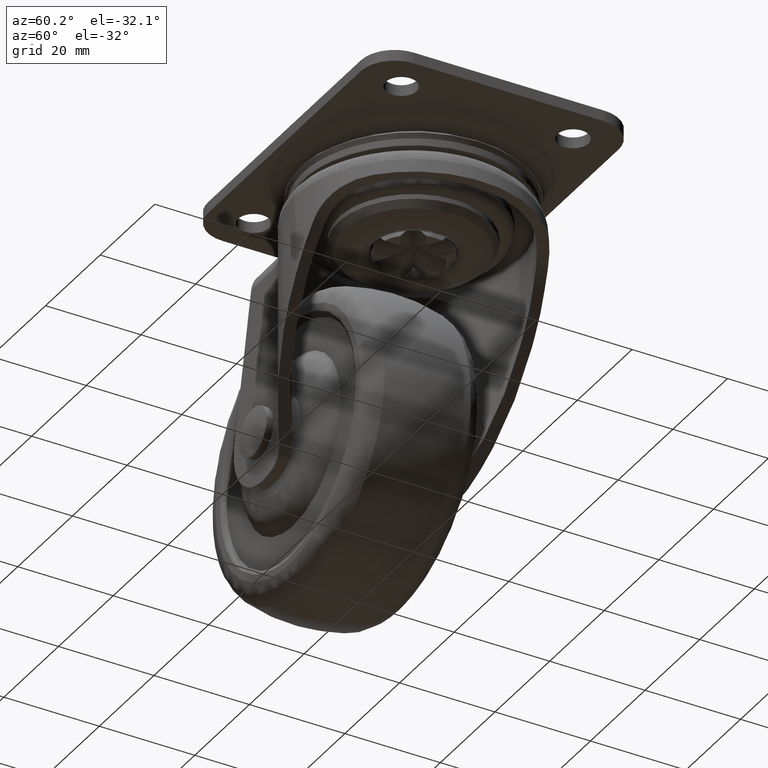
[diagram: clean part render]
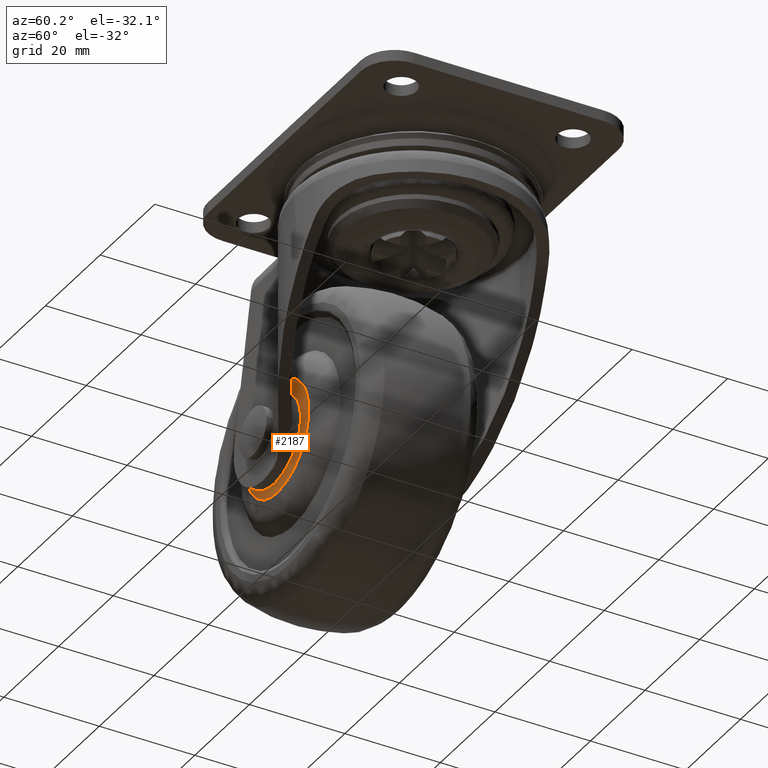
[diagram: same view with one face highlighted and labeled with its STEP entity id]
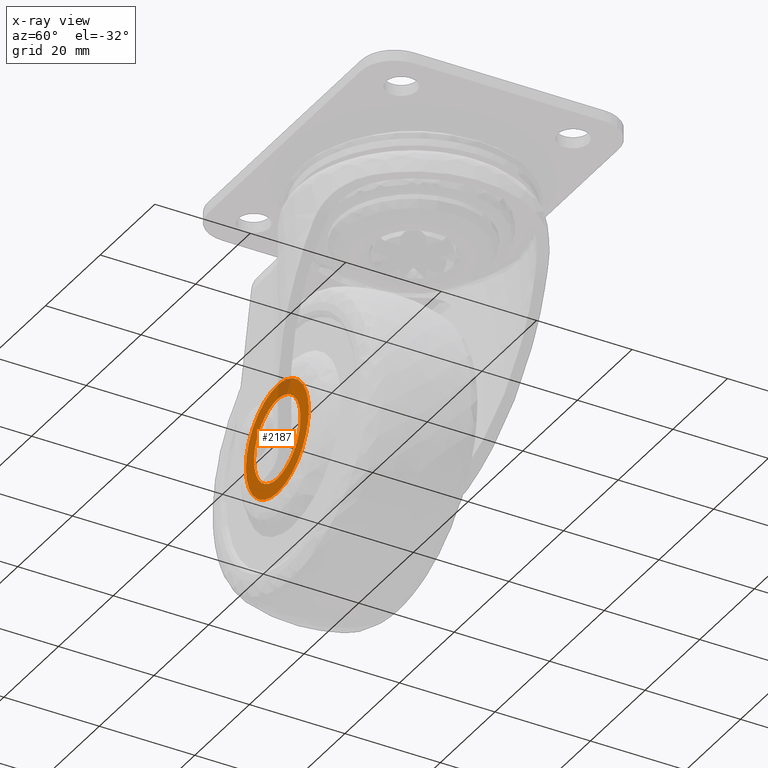
[diagram: x-ray of the same camera — body ghosted, the highlighted face saturated]
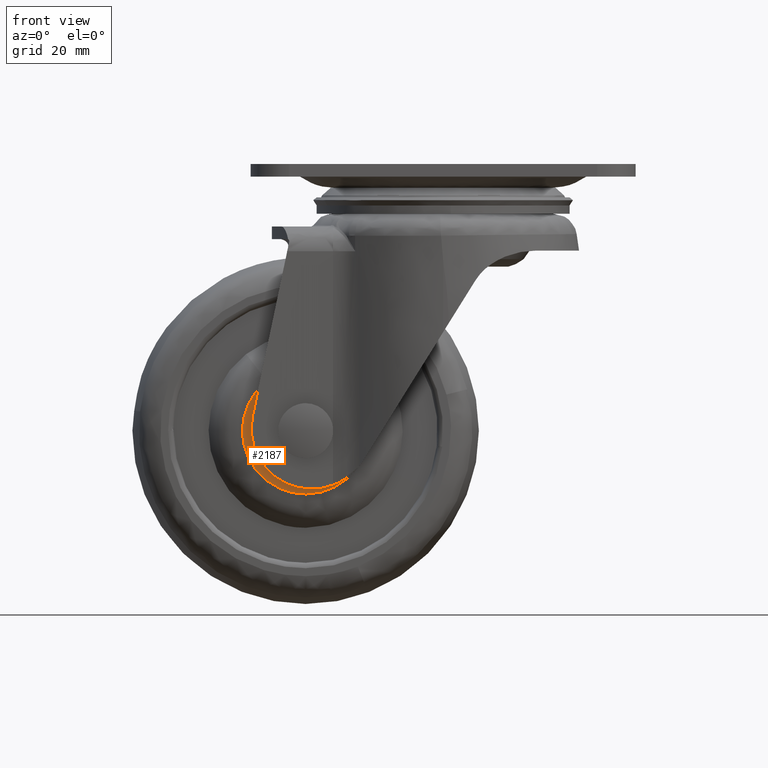
[diagram: same view with one face highlighted and labeled with its STEP entity id]
A machine part, auxiliary view. The second image highlights one B-rep face of the part: STEP entity #2187.
The next image is the same camera in x-ray: the body ghosted, the highlighted face saturated — about 7% of this face is hidden behind the body in this view.
A second angle (front view) of the same face is appended — the face is thin or edge-on in the first view.
In plain terms, the highlighted face is a freeform B-spline surface patch.
Its self-contained STEP definition (entity closure, byte-faithful):
#1599=CARTESIAN_POINT('',(-15.529375126636429,-14.199999999999999,-41.976325084489787));
#1600=VERTEX_POINT('',#1599);
#1614=CARTESIAN_POINT('',(-25.0,-14.199999999999999,-59.999918000000001));
#1615=VERTEX_POINT('',#1614);
#1616=CARTESIAN_POINT('',(-25.0,-14.199999999999999,-59.999918000000001));
#1617=CARTESIAN_POINT('',(-13.500000000000002,-14.200000000000006,-59.999918000000001));
#1618=CARTESIAN_POINT('',(-13.500000000000000,-14.199999999999999,-48.499918000000001));
#1619=CARTESIAN_POINT('',(-13.499999999999998,-14.200000000000006,-44.922470070837896));
#1620=CARTESIAN_POINT('',(-15.529375126636424,-14.200000000000001,-41.976325084489773));
#1628=(BOUNDED_CURVE()B_SPLINE_CURVE(2,(#1616,#1617,#1618,#1619,#1620),.UNSPECIFIED.,.F.,.U.)B_SPLINE_CURVE_WITH_KNOTS((3,2,3),(0.0,0.250000000000000,0.347429953510461),.UNSPECIFIED.)CURVE()GEOMETRIC_REPRESENTATION_ITEM()RATIONAL_B_SPLINE_CURVE((1.0,0.707106781186548,1.0,0.885853709229905,0.860677560884785))REPRESENTATION_ITEM(''));
#1629=EDGE_CURVE('',#1615,#1600,#1628,.T.);
#1631=CARTESIAN_POINT('',(-32.054561753194257,-14.199999999999999,-39.417894079690129));
#1632=VERTEX_POINT('',#1631);
#1633=CARTESIAN_POINT('',(-32.054561753194271,-14.200000000000001,-39.417894079690129));
#1634=CARTESIAN_POINT('',(-36.500000000000007,-14.200000000000003,-42.870937026617369));
#1635=CARTESIAN_POINT('',(-36.500000000000007,-14.199999999999999,-48.499918000000001));
#1636=CARTESIAN_POINT('',(-36.500000000000007,-14.200000000000006,-59.999918000000001));
#1637=CARTESIAN_POINT('',(-25.0,-14.199999999999999,-59.999918000000001));
#1645=(BOUNDED_CURVE()B_SPLINE_CURVE(2,(#1633,#1634,#1635,#1636,#1637),.UNSPECIFIED.,.F.,.U.)B_SPLINE_CURVE_WITH_KNOTS((3,2,3),(0.606116047955651,0.750000000000000,1.0),.UNSPECIFIED.)CURVE()GEOMETRIC_REPRESENTATION_ITEM()RATIONAL_B_SPLINE_CURVE((0.856895687853113,0.831429464600521,1.0,0.707106781186548,1.0))REPRESENTATION_ITEM(''));
#1646=EDGE_CURVE('',#1632,#1615,#1645,.T.);
#1703=CARTESIAN_POINT('',(-25.0,-14.199999999999999,-36.999918000000008));
#1704=VERTEX_POINT('',#1703);
#1705=CARTESIAN_POINT('',(-25.0,-14.199999999999999,-36.999918000000008));
#1706=CARTESIAN_POINT('',(-28.941665818358757,-14.200000000000001,-36.999918000000015));
#1707=CARTESIAN_POINT('',(-32.054561753194271,-14.200000000000001,-39.417894079690129));
#1715=(BOUNDED_CURVE()B_SPLINE_CURVE(2,(#1705,#1706,#1707),.UNSPECIFIED.,.F.,.U.)B_SPLINE_CURVE_WITH_KNOTS((3,3),(0.500000000000000,0.606116047955651),.UNSPECIFIED.)CURVE()GEOMETRIC_REPRESENTATION_ITEM()RATIONAL_B_SPLINE_CURVE((1.0,0.875677316586027,0.856895687853113))REPRESENTATION_ITEM(''));
#1716=EDGE_CURVE('',#1704,#1632,#1715,.T.);
#1718=CARTESIAN_POINT('',(-15.529375126636424,-14.200000000000001,-41.976325084489773));
#1719=CARTESIAN_POINT('',(-18.957243344981730,-14.200000000000001,-36.999918000000008));
#1720=CARTESIAN_POINT('',(-25.0,-14.199999999999999,-36.999918000000008));
#1728=(BOUNDED_CURVE()B_SPLINE_CURVE(2,(#1718,#1719,#1720),.UNSPECIFIED.,.F.,.U.)B_SPLINE_CURVE_WITH_KNOTS((3,3),(0.347429953510461,0.500000000000000),.UNSPECIFIED.)CURVE()GEOMETRIC_REPRESENTATION_ITEM()RATIONAL_B_SPLINE_CURVE((0.860677560884785,0.821253071956643,1.0))REPRESENTATION_ITEM(''));
#1729=EDGE_CURVE('',#1600,#1704,#1728,.T.);
#1777=CARTESIAN_POINT('',(-29.554527674581781,-14.200000000218340,-41.323130763676410));
#1778=VERTEX_POINT('',#1777);
#1779=CARTESIAN_POINT('',(-25.0,-14.199999999999999,-56.999917845669842));
#1780=VERTEX_POINT('',#1779);
#1781=CARTESIAN_POINT('',(-29.554527674581792,-14.200000000218344,-41.323130763676417));
#1782=CARTESIAN_POINT('',(-33.499999845669834,-14.200000000000006,-43.827003541251685));
#1783=CARTESIAN_POINT('',(-33.499999845669841,-14.199999999999999,-48.499918000000001));
#1784=CARTESIAN_POINT('',(-33.499999845669834,-14.200000000000006,-56.999917845669835));
#1785=CARTESIAN_POINT('',(-25.0,-14.199999999999999,-56.999917845669842));
#1793=(BOUNDED_CURVE()B_SPLINE_CURVE(2,(#1781,#1782,#1783,#1784,#1785),.UNSPECIFIED.,.F.,.U.)B_SPLINE_CURVE_WITH_KNOTS((3,2,3),(0.591683542669673,0.750000000000000,1.0),.UNSPECIFIED.)CURVE()GEOMETRIC_REPRESENTATION_ITEM()RATIONAL_B_SPLINE_CURVE((0.863956829593353,0.814520732885512,1.0,0.707106781186548,1.0))REPRESENTATION_ITEM(''));
#1794=EDGE_CURVE('',#1778,#1780,#1793,.T.);
#1796=CARTESIAN_POINT('',(-17.823212763758580,-14.200000000351061,-43.945390325448827));
#1797=VERTEX_POINT('',#1796);
#1798=CARTESIAN_POINT('',(-25.0,-14.199999999999999,-56.999917845669842));
#1799=CARTESIAN_POINT('',(-16.500000154330163,-14.200000000000006,-56.999917845669835));
#1800=CARTESIAN_POINT('',(-16.500000154330159,-14.199999999999999,-48.499918000000001));
#1801=CARTESIAN_POINT('',(-16.500000154330163,-14.199999999999999,-46.030439762557329));
#1802=CARTESIAN_POINT('',(-17.823212763758580,-14.200000000351054,-43.945390325448834));
#1810=(BOUNDED_CURVE()B_SPLINE_CURVE(2,(#1798,#1799,#1800,#1801,#1802),.UNSPECIFIED.,.F.,.U.)B_SPLINE_CURVE_WITH_KNOTS((3,2,3),(0.0,0.250000000000000,0.341683542670327),.UNSPECIFIED.)CURVE()GEOMETRIC_REPRESENTATION_ITEM()RATIONAL_B_SPLINE_CURVE((1.0,0.707106781186548,1.0,0.892586048300270,0.863956829592945))REPRESENTATION_ITEM(''));
#1811=EDGE_CURVE('',#1780,#1797,#1810,.T.);
#1895=CARTESIAN_POINT('',(-25.0,-14.199999999999999,-39.999918154330160));
#1896=VERTEX_POINT('',#1895);
#1897=CARTESIAN_POINT('',(-25.0,-14.199999999999999,-39.999918154330160));
#1898=CARTESIAN_POINT('',(-27.469478237422976,-14.200000000000006,-39.999918154330160));
#1899=CARTESIAN_POINT('',(-29.554527674581781,-14.200000000218340,-41.323130763676417));
#1907=(BOUNDED_CURVE()B_SPLINE_CURVE(2,(#1897,#1898,#1899),.UNSPECIFIED.,.F.,.U.)B_SPLINE_CURVE_WITH_KNOTS((3,3),(0.500000000000000,0.591683542669674),.UNSPECIFIED.)CURVE()GEOMETRIC_REPRESENTATION_ITEM()RATIONAL_B_SPLINE_CURVE((1.0,0.892586048301035,0.863956829593352))REPRESENTATION_ITEM(''));
#1908=EDGE_CURVE('',#1896,#1778,#1907,.T.);
#1940=CARTESIAN_POINT('',(-17.823212763758580,-14.200000000351054,-43.945390325448834));
#1941=CARTESIAN_POINT('',(-20.327085541275373,-14.200000000000003,-39.999918154330160));
#1942=CARTESIAN_POINT('',(-25.0,-14.199999999999999,-39.999918154330160));
#1950=(BOUNDED_CURVE()B_SPLINE_CURVE(2,(#1940,#1941,#1942),.UNSPECIFIED.,.F.,.U.)B_SPLINE_CURVE_WITH_KNOTS((3,3),(0.341683542670327,0.500000000000000),.UNSPECIFIED.)CURVE()GEOMETRIC_REPRESENTATION_ITEM()RATIONAL_B_SPLINE_CURVE((0.863956829592945,0.814520732886278,1.0))REPRESENTATION_ITEM(''));
#1951=EDGE_CURVE('',#1797,#1896,#1950,.T.);
#2170=CARTESIAN_POINT('',(-37.648688073856292,-14.199999999999999,-35.851069905574207));
#2171=CARTESIAN_POINT('',(-37.648688073856292,-14.199999999999999,-61.148770207146292));
#2172=CARTESIAN_POINT('',(-12.354471748866390,-14.199999999999999,-35.851069905574221));
#2173=CARTESIAN_POINT('',(-12.354471748866390,-14.199999999999999,-61.148770207146292));
#2174=B_SPLINE_SURFACE_WITH_KNOTS('',1,1,((#2170,#2172),(#2171,#2173)),.UNSPECIFIED.,.F.,.F.,.U.,(2,2),(2,2),(0.0,25.297700301572078),(0.0,25.294216324989900),.UNSPECIFIED.);
#2175=ORIENTED_EDGE('',*,*,#1629,.T.);
#2176=ORIENTED_EDGE('',*,*,#1729,.T.);
#2177=ORIENTED_EDGE('',*,*,#1716,.T.);
#2178=ORIENTED_EDGE('',*,*,#1646,.T.);
#2179=EDGE_LOOP('',(#2175,#2176,#2177,#2178));
#2180=FACE_OUTER_BOUND('',#2179,.T.);
#2181=ORIENTED_EDGE('',*,*,#1811,.F.);
#2182=ORIENTED_EDGE('',*,*,#1794,.F.);
#2183=ORIENTED_EDGE('',*,*,#1908,.F.);
#2184=ORIENTED_EDGE('',*,*,#1951,.F.);
#2185=EDGE_LOOP('',(#2181,#2182,#2183,#2184));
#2186=FACE_BOUND('',#2185,.T.);
#2187=ADVANCED_FACE('',(#2180,#2186),#2174,.T.);